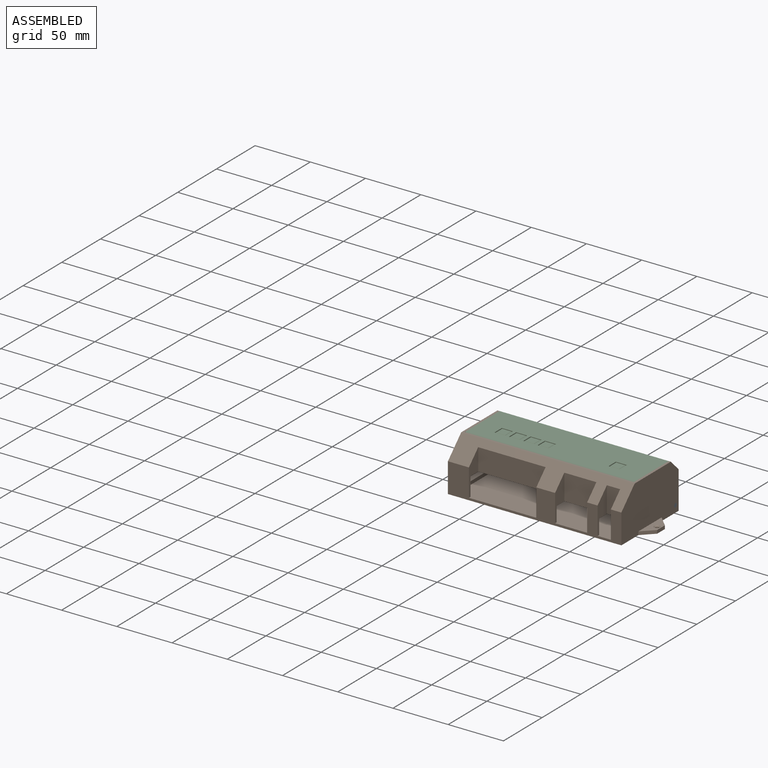
[diagram: assembled view]
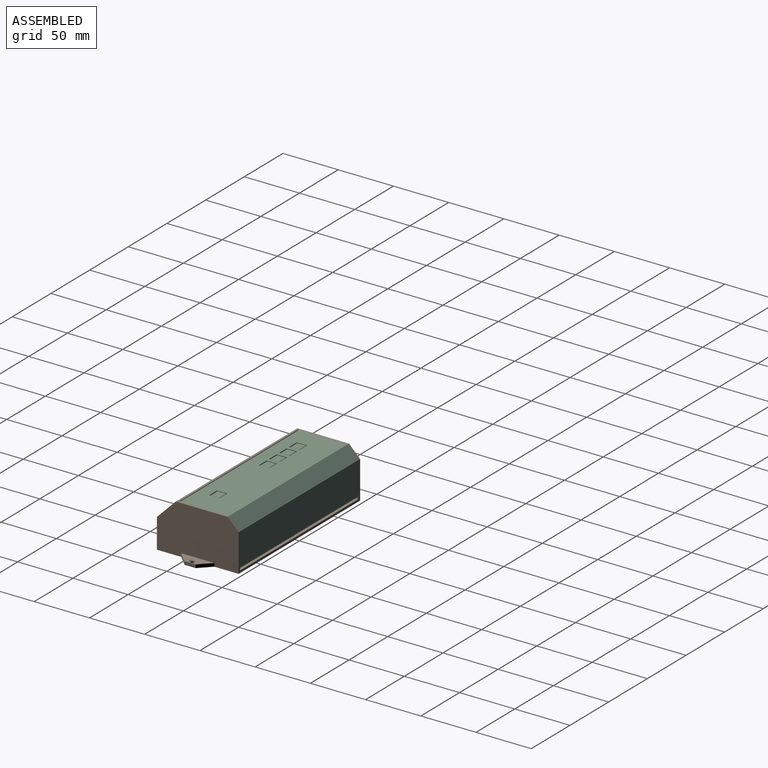
[diagram: assembled view, second angle]
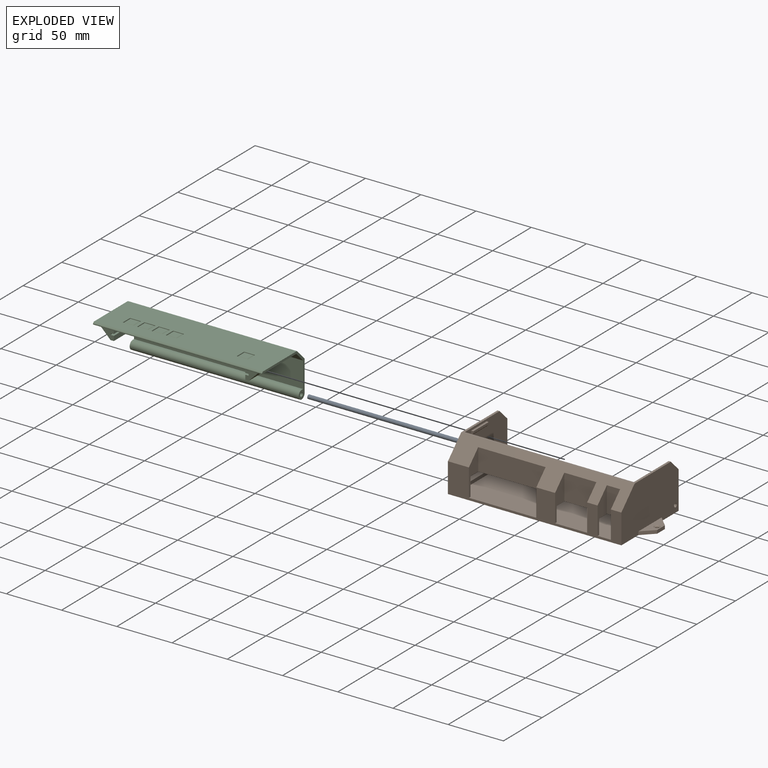
[diagram: exploded view]
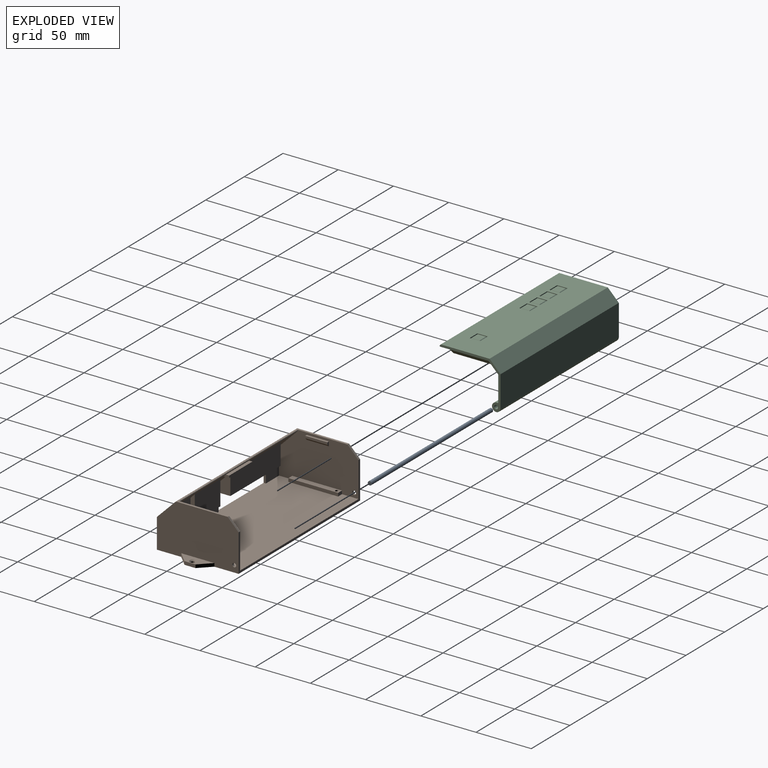
[diagram: exploded view, second angle]
ASSEMBLY  parts=3 mates=2
PART A: 3 faces, bbox 157x3.5x3.5 mm
  f0: cylinder r=1.75mm len=157mm, axis (1,0,0), area 1726.3mm2, adj f1,f2
  f1: plane 3.5x3.5mm, normal (-1,0,0), area 9.6mm2, adj f0
  f2: plane 3.5x3.5mm, normal (1,0,0), area 9.6mm2, adj f0
PART B: 81 faces, bbox 177x74x44 mm
  f0: plane 153x74mm, normal (0,0,1), area 10770mm2, adj f1,f9,f10,f11,f12,f13,f17,f18
  f1: plane 72x42mm, normal (1,0,0), area 2587.8mm2, adj f0,f8,f13,f37,f40,f42,f44,f57
  f2: plane 5x2mm, normal (1,0,0), area 8mm2, adj f4,f5,f6,f37
  f3: plane 5x2mm, normal (-1,0,0), area 8mm2, adj f4,f5,f6,f37
  f4: plane 30x5mm, normal (0,0,-1), area 150mm2, adj f2,f3,f6,f37
  f5: plane 30x3mm, normal (0,0,1), area 90mm2, adj f2,f3,f6,f37
  f6: plane 30x2mm, normal (0,1,0), area 60mm2, adj f2,f3,f4,f5
  f7: plane 74x44mm, normal (-1,0,0), area 2958.9mm2, adj f8,f12,f16,f26,f40,f42,f44,f51
  f8: plane 157x46.83mm, normal (0,0,1), area 467.1mm2, adj f1,f7,f15,f26,f27,f43,f44,f57
  f9: plane 24x9.5mm, normal (0,1,0), area 186mm2, adj f0,f17,f22,f28,f33,f37,f38,f39
  f10: plane 24x7.5mm, normal (0,1,0), area 159mm2, adj f0,f18,f27,f29,f37,f39
  f11: plane 24x17mm, normal (0,1,0), area 373mm2, adj f0,f14,f21,f23,f32,f34,f37,f38
  f12: plane 157x26.83mm, normal (0,-1,0), area 1679.6mm2, adj f0,f7,f15,f16,f17,f18,f21,f22
  f13: plane 24x17mm, normal (0,1,0), area 394mm2, adj f0,f1,f14,f25,f36,f37
  f14: plane 65x12mm, normal (0,0,-1), area 170mm2, adj f11,f13,f23,f24,f25,f34,f35,f36
  f15: plane 74x44mm, normal (1,0,0), area 2958.9mm2, adj f8,f12,f16,f26,f40,f41,f43,f45
  f16: plane 177x74mm, normal (0,0,-1), area 11998.8mm2, adj f7,f12,f15,f40,f46,f47,f48,f49
  f17: plane 36.83x12mm, normal (1,0,0), area 234.9mm2, adj f0,f9,f12,f19,f26,f39
  f18: plane 36.83x12mm, normal (-1,0,0), area 234.9mm2, adj f0,f10,f12,f19,f26,f39
  f19: plane 23.33x12mm, normal (0,-1,0), area 279.9mm2, adj f17,f18,f26,f39
  f20: plane 29x23.33mm, normal (0,-1,0), area 676.5mm2, adj f21,f22,f26,f38
  f21: plane 36.83x12mm, normal (1,0,0), area 234.9mm2, adj f0,f11,f12,f20,f26,f38
  f22: plane 36.83x12mm, normal (-1,0,0), area 234.9mm2, adj f0,f9,f12,f20,f26,f38
  f23: plane 36.83x12mm, normal (-1,0,0), area 199.9mm2, adj f0,f11,f12,f14,f24,f26
  f24: plane 61x19.83mm, normal (0,-1,0), area 1209.5mm2, adj f14,f23,f25,f26
  f25: plane 36.83x12mm, normal (1,0,0), area 199.9mm2, adj f0,f12,f13,f14,f24,f26
  f26: plane 157x17.17mm, normal (0,-0.71,0.71), area 2081.6mm2, adj f7,f8,f12,f15,f17,f18,f19,f20
  f27: plane 72x42mm, normal (-1,0,0), area 2587.8mm2, adj f0,f8,f10,f37,f40,f41,f43,f57
  f28: plane 22.5x12mm, normal (-1,0,0), area 198mm2, adj f9,f30,f37,f39
  f29: plane 22.5x12mm, normal (1,0,0), area 198mm2, adj f10,f30,f37,f39
  f30: plane 22.5x16mm, normal (0,1,0), area 360mm2, adj f28,f29,f37,f39
  f31: plane 33x22.5mm, normal (0,1,0), area 742.5mm2, adj f32,f33,f37,f38
  f32: plane 22.5x12mm, normal (-1,0,0), area 198mm2, adj f11,f31,f37,f38
  f33: plane 22.5x12mm, normal (1,0,0), area 198mm2, adj f9,f31,f37,f38
  f34: plane 19x12mm, normal (1,0,0), area 156mm2, adj f11,f14,f35,f37
  f35: plane 65x19mm, normal (0,1,0), area 1235mm2, adj f14,f34,f36,f37
  f36: plane 19x12mm, normal (-1,0,0), area 156mm2, adj f13,f14,f35,f37
  f37: plane 153x17.06mm, normal (0,0.71,-0.71), area 1671.1mm2, adj f1,f2,f3,f4,f5,f9,f10,f11
  f38: plane 33x12mm, normal (0,0,-1), area 106mm2, adj f9,f11,f20,f21,f22,f31,f32,f33
  f39: plane 16x12mm, normal (0,0,-1), area 72mm2, adj f9,f10,f17,f18,f19,f28,f29,f30
  f40: plane 157x34mm, normal (0,1,0), area 442mm2, adj f0,f1,f7,f15,f16,f27,f43,f44
  f41: cylinder r=1.75mm len=3.5mm, axis (1,0,0), area 22mm2, adj f15,f27
  f42: cylinder r=1.75mm len=3.5mm, axis (1,0,0), area 22mm2, adj f1,f7
  f43: plane 10x10mm, normal (0,0.71,0.71), area 28.3mm2, adj f8,f15,f27,f40
  f44: plane 10x10mm, normal (0,0.71,0.71), area 28.3mm2, adj f1,f7,f8,f40
  f45: plane 30x10mm, normal (0,0,1), area 176.2mm2, adj f15,f46,f47,f48,f50
  f46: plane 10x3mm, normal (1,0,0), area 30mm2, adj f16,f45,f47,f48
  f47: plane 10x10mm, normal (0.71,0.71,0), area 42.4mm2, adj f15,f16,f45,f46
  f48: plane 10x10mm, normal (0.71,-0.71,0), area 42.4mm2, adj f15,f16,f45,f46
  f49: cylinder r=1.75mm len=3.5mm, axis (0,0,1), area 22mm2, adj f16,f50
  f50: cone r=1.75mm half-angle=45deg, axis (0,0,1), area 20mm2, adj f45,f49
  f51: plane 30x10mm, normal (0,0,1), area 176.2mm2, adj f7,f52,f53,f54,f56
  f52: plane 10x3mm, normal (-1,0,0), area 30mm2, adj f16,f51,f53,f54
  f53: plane 10x10mm, normal (-0.71,-0.71,0), area 42.4mm2, adj f7,f16,f51,f52
  f54: plane 10x10mm, normal (-0.71,0.71,0), area 42.4mm2, adj f7,f16,f51,f52
  f55: cylinder r=1.75mm len=3.5mm, axis (0,0,1), area 22mm2, adj f16,f56
  f56: cone r=1.75mm half-angle=45deg, axis (0,0,1), area 20mm2, adj f51,f55
  f57: plane 153x0.4mm, normal (0,0.92,0.38), area 66mm2, adj f1,f8,f27,f58
  f58: cylinder r=0.5mm len=153mm, axis (-1,0,0), area 90.1mm2, adj f1,f27,f37,f57
  f59: plane 20x2mm, normal (0,0,1), area 40mm2, adj f1,f60,f61,f62
  f60: plane 4x2mm, normal (0,-1,0), area 6mm2, adj f1,f59,f62,f67
  f61: plane 4x2mm, normal (0,1,0), area 6mm2, adj f1,f59,f62,f67
  f62: plane 20x2mm, normal (1,0,0), area 40mm2, adj f59,f60,f61,f67
  f63: plane 20x2mm, normal (0,0,1), area 40mm2, adj f27,f64,f65,f66
  f64: plane 4x2mm, normal (0,1,0), area 6mm2, adj f27,f63,f66,f68
  f65: plane 4x2mm, normal (0,-1,0), area 6mm2, adj f27,f63,f66,f68
  f66: plane 20x2mm, normal (-1,0,0), area 40mm2, adj f63,f64,f65,f68
  f67: plane 20x2mm, normal (0.71,0,-0.71), area 56.6mm2, adj f1,f60,f61,f62
  f68: plane 20x2mm, normal (-0.71,0,-0.71), area 56.6mm2, adj f27,f64,f65,f66
  f69: plane 5x3mm, normal (0,1,0), area 15mm2, adj f0,f27,f70,f72
  f70: plane 45x3mm, normal (-1,0,0), area 135mm2, adj f0,f69,f71,f72
  f71: plane 5x3mm, normal (0,-1,0), area 15mm2, adj f0,f27,f70,f72
  f72: plane 45x5mm, normal (0,0,1), area 220.1mm2, adj f27,f69,f70,f71,f79
  f73: plane 5x3mm, normal (0,1,0), area 15mm2, adj f0,f1,f75,f76
  f74: plane 5x3mm, normal (0,-1,0), area 15mm2, adj f0,f1,f75,f76
  f75: plane 45x3mm, normal (1,0,0), area 135mm2, adj f0,f73,f74,f76
  f76: plane 45x5mm, normal (0,0,1), area 220.1mm2, adj f1,f73,f74,f75,f77
  f77: cylinder r=1.25mm len=4mm, axis (0,0,1), area 31.4mm2, adj f76,f78
  f78: plane 2.5x2.5mm, normal (0,0,1), area 4.9mm2, adj f77
  f79: cylinder r=1.25mm len=4mm, axis (0,0,1), area 31.4mm2, adj f72,f80
  f80: plane 2.5x2.5mm, normal (0,0,1), area 4.9mm2, adj f79
PART C: 104 faces, bbox 153x55.1x42 mm
  f0: plane 8x7.5mm, normal (0,0,1), area 60mm2, adj f100,f101,f102,f103
  f1: plane 8x7.5mm, normal (0,0,1), area 60mm2, adj f96,f97,f98,f99
  f2: plane 8x7.5mm, normal (0,0,1), area 60mm2, adj f92,f93,f94,f95
  f3: plane 8x7.5mm, normal (0,0,1), area 60mm2, adj f88,f89,f90,f91
  f4: plane 8x7.5mm, normal (0,0,1), area 60mm2, adj f84,f85,f86,f87
  f5: plane 153x44.17mm, normal (0,0,-1), area 4704.3mm2, adj f8,f13,f17,f18,f23,f25,f26,f28
  f6: plane 153x44mm, normal (0,0,1), area 6257mm2, adj f14,f15,f17,f18,f40,f41,f42,f43
  f7: plane 34x4.25mm, normal (1,0,0), area 144.5mm2, adj f10,f26,f30,f31
  f8: plane 13x10mm, normal (0,-1,0), area 75.5mm2, adj f5,f9,f28,f30,f31,f32,f33,f36
  f9: plane 34x4.25mm, normal (-1,0,0), area 144.5mm2, adj f8,f10,f30,f31
  f10: plane 119x4.25mm, normal (0,-1,0), area 505.7mm2, adj f7,f9,f30,f31
  f11: plane 153x1.75mm, normal (0,0,1), area 267.8mm2, adj f12,f17,f18,f20
  f12: plane 153x23.32mm, normal (0,-1,0), area 3568.2mm2, adj f11,f13,f17,f18
  f13: plane 153x8.83mm, normal (0,-0.71,-0.71), area 1910.2mm2, adj f5,f12,f17,f18,f27
  f14: plane 153x0.82mm, normal (0,-0.71,0.71), area 177.5mm2, adj f6,f17,f18,f24
  f15: plane 153x10mm, normal (0,0.71,0.71), area 2163.7mm2, adj f6,f16,f17,f18
  f16: plane 153x28mm, normal (0,1,0), area 4284mm2, adj f15,f17,f18,f22
  f17: plane 55.11x42mm, normal (-1,0,0), area 203.8mm2, adj f5,f6,f11,f12,f13,f14,f15,f16
  f18: plane 55.11x42mm, normal (1,0,0), area 203.8mm2, adj f5,f6,f11,f12,f13,f14,f15,f16
  f19: cylinder r=1.75mm len=153mm, axis (-1,0,0), area 1682.3mm2, adj f17,f18
  f20: cylinder r=4mm len=153mm, axis (1,0,0), area 949.9mm2, adj f11,f17,f18,f21
  f21: cylinder r=4mm len=153mm, axis (1,0,0), area 930.7mm2, adj f17,f18,f20,f22
  f22: cylinder r=4mm len=153mm, axis (-1,0,0), area 942.2mm2, adj f16,f17,f18,f21
  f23: plane 153x0.09mm, normal (0,-0.92,-0.38), area 14.9mm2, adj f5,f17,f18,f24
  f24: cylinder r=1mm len=153mm, axis (-1,0,0), area 180.2mm2, adj f14,f17,f18,f23
  f25: plane 34x4.25mm, normal (1,0,0), area 144.5mm2, adj f5,f26,f29,f33
  f26: plane 13x10mm, normal (0,-1,0), area 75.5mm2, adj f5,f7,f25,f30,f31,f33,f34,f38
  f27: plane 145x5mm, normal (0,1,0), area 700mm2, adj f13,f36,f37,f38
  f28: plane 34x4.25mm, normal (-1,0,0), area 144.5mm2, adj f5,f8,f29,f33
  f29: plane 119x4.25mm, normal (0,-1,0), area 505.8mm2, adj f5,f25,f28,f33
  f30: plane 125x36.59mm, normal (0,0,-1), area 527.2mm2, adj f7,f8,f9,f10,f26,f36,f37,f38
  f31: plane 125x40mm, normal (0,0,1), area 954mm2, adj f7,f8,f9,f10,f26,f32,f34,f35
  f32: plane 40x1.5mm, normal (-1,0,0), area 60mm2, adj f8,f31,f33,f35
  f33: plane 125x40mm, normal (0,0,-1), area 954mm2, adj f8,f25,f26,f28,f29,f32,f34,f35
  f34: plane 40x1.5mm, normal (1,0,0), area 60mm2, adj f26,f31,f33,f35
  f35: plane 125x1.5mm, normal (0,-1,0), area 187.5mm2, adj f31,f32,f33,f34
  f36: plane 41.59x10mm, normal (0.71,0,-0.71), area 570.4mm2, adj f5,f8,f27,f30,f37
  f37: plane 135x5mm, normal (0,0.71,-0.71), area 919.2mm2, adj f27,f30,f36,f38
  f38: plane 41.59x10mm, normal (-0.71,0,-0.71), area 570.4mm2, adj f5,f26,f27,f30,f37
  f39: plane 9x1.5mm, normal (-1,0,0), area 13.3mm2, adj f5,f40,f45,f82,f83,f87
  f40: plane 10x2mm, normal (0,-1,0), area 11mm2, adj f5,f6,f39,f41,f43,f44,f83
  f41: plane 9.5x2mm, normal (1,0,0), area 19mm2, adj f5,f6,f40,f42
  f42: plane 10x2mm, normal (0,1,0), area 20mm2, adj f5,f6,f41,f43
  f43: plane 9.5x2mm, normal (-1,0,0), area 19mm2, adj f5,f6,f40,f42
  f44: plane 9x1.5mm, normal (1,0,0), area 13.3mm2, adj f5,f40,f45,f82,f83,f84
  f45: plane 9x1.5mm, normal (0,-1,0), area 13.5mm2, adj f5,f39,f44,f86
  f46: plane 9x1.5mm, normal (-1,0,0), area 13.3mm2, adj f5,f47,f52,f80,f81,f91
  f47: plane 10x2mm, normal (0,-1,0), area 11mm2, adj f5,f6,f46,f48,f50,f51,f81
  f48: plane 9.5x2mm, normal (1,0,0), area 19mm2, adj f5,f6,f47,f49
  f49: plane 10x2mm, normal (0,1,0), area 20mm2, adj f5,f6,f48,f50
  f50: plane 9.5x2mm, normal (-1,0,0), area 19mm2, adj f5,f6,f47,f49
  f51: plane 9x1.5mm, normal (1,0,0), area 13.3mm2, adj f5,f47,f52,f80,f81,f88
  f52: plane 9x1.5mm, normal (0,-1,0), area 13.5mm2, adj f5,f46,f51,f90
  f53: plane 9x1.5mm, normal (-1,0,0), area 13.3mm2, adj f5,f54,f59,f78,f79,f95
  f54: plane 10x2mm, normal (0,-1,0), area 11mm2, adj f5,f6,f53,f55,f57,f58,f79
  f55: plane 9.5x2mm, normal (1,0,0), area 19mm2, adj f5,f6,f54,f56
  f56: plane 10x2mm, normal (0,1,0), area 20mm2, adj f5,f6,f55,f57
  f57: plane 9.5x2mm, normal (-1,0,0), area 19mm2, adj f5,f6,f54,f56
  f58: plane 9x1.5mm, normal (1,0,0), area 13.3mm2, adj f5,f54,f59,f78,f79,f92
  f59: plane 9x1.5mm, normal (0,-1,0), area 13.5mm2, adj f5,f53,f58,f94
  f60: plane 9x1.5mm, normal (-1,0,0), area 13.3mm2, adj f5,f61,f66,f76,f77,f99
  f61: plane 10x2mm, normal (0,-1,0), area 11mm2, adj f5,f6,f60,f62,f64,f65,f77
  f62: plane 9.5x2mm, normal (1,0,0), area 19mm2, adj f5,f6,f61,f63
  f63: plane 10x2mm, normal (0,1,0), area 20mm2, adj f5,f6,f62,f64
  f64: plane 9.5x2mm, normal (-1,0,0), area 19mm2, adj f5,f6,f61,f63
  f65: plane 9x1.5mm, normal (1,0,0), area 13.3mm2, adj f5,f61,f66,f76,f77,f96
  f66: plane 9x1.5mm, normal (0,-1,0), area 13.5mm2, adj f5,f60,f65,f98
  f67: plane 9x1.5mm, normal (-1,0,0), area 13.3mm2, adj f5,f68,f73,f74,f75,f100
  f68: plane 10x2mm, normal (0,-1,0), area 11mm2, adj f5,f6,f67,f69,f71,f72,f75
  f69: plane 9.5x2mm, normal (1,0,0), area 19mm2, adj f5,f6,f68,f70
  f70: plane 10x2mm, normal (0,1,0), area 20mm2, adj f5,f6,f69,f71
  f71: plane 9.5x2mm, normal (-1,0,0), area 19mm2, adj f5,f6,f68,f70
  f72: plane 9x1.5mm, normal (1,0,0), area 13.3mm2, adj f5,f68,f73,f74,f75,f103
  f73: plane 9x1.5mm, normal (0,-1,0), area 13.5mm2, adj f5,f67,f72,f102
  f74: plane 9x0.5mm, normal (0,1,0), area 4.5mm2, adj f67,f72,f75,f101
  f75: plane 9x0.5mm, normal (0,0,1), area 4.5mm2, adj f67,f68,f72,f74
  f76: plane 9x0.5mm, normal (0,1,0), area 4.5mm2, adj f60,f65,f77,f97
  f77: plane 9x0.5mm, normal (0,0,1), area 4.5mm2, adj f60,f61,f65,f76
  f78: plane 9x0.5mm, normal (0,1,0), area 4.5mm2, adj f53,f58,f79,f93
  f79: plane 9x0.5mm, normal (0,0,1), area 4.5mm2, adj f53,f54,f58,f78
  f80: plane 9x0.5mm, normal (0,1,0), area 4.5mm2, adj f46,f51,f81,f89
  f81: plane 9x0.5mm, normal (0,0,1), area 4.5mm2, adj f46,f47,f51,f80
  f82: plane 9x0.5mm, normal (0,1,0), area 4.5mm2, adj f39,f44,f83,f85
  f83: plane 9x0.5mm, normal (0,0,1), area 4.5mm2, adj f39,f40,f44,f82
  f84: plane 8.5x0.5mm, normal (0.71,0,0.71), area 5.7mm2, adj f4,f44,f85,f86
  f85: plane 9x0.5mm, normal (0,0.71,0.71), area 6mm2, adj f4,f82,f84,f87
  f86: plane 9x0.5mm, normal (0,-0.71,0.71), area 6mm2, adj f4,f45,f84,f87
  f87: plane 8.5x0.5mm, normal (-0.71,0,0.71), area 5.7mm2, adj f4,f39,f85,f86
  f88: plane 8.5x0.5mm, normal (0.71,0,0.71), area 5.7mm2, adj f3,f51,f89,f90
  f89: plane 9x0.5mm, normal (0,0.71,0.71), area 6mm2, adj f3,f80,f88,f91
  f90: plane 9x0.5mm, normal (0,-0.71,0.71), area 6mm2, adj f3,f52,f88,f91
  f91: plane 8.5x0.5mm, normal (-0.71,0,0.71), area 5.7mm2, adj f3,f46,f89,f90
  f92: plane 8.5x0.5mm, normal (0.71,0,0.71), area 5.7mm2, adj f2,f58,f93,f94
  f93: plane 9x0.5mm, normal (0,0.71,0.71), area 6mm2, adj f2,f78,f92,f95
  f94: plane 9x0.5mm, normal (0,-0.71,0.71), area 6mm2, adj f2,f59,f92,f95
  f95: plane 8.5x0.5mm, normal (-0.71,0,0.71), area 5.7mm2, adj f2,f53,f93,f94
  f96: plane 8.5x0.5mm, normal (0.71,0,0.71), area 5.7mm2, adj f1,f65,f97,f98
  f97: plane 9x0.5mm, normal (0,0.71,0.71), area 6mm2, adj f1,f76,f96,f99
  f98: plane 9x0.5mm, normal (0,-0.71,0.71), area 6mm2, adj f1,f66,f96,f99
  f99: plane 8.5x0.5mm, normal (-0.71,0,0.71), area 5.7mm2, adj f1,f60,f97,f98
  f100: plane 8.5x0.5mm, normal (-0.71,0,0.71), area 5.7mm2, adj f0,f67,f101,f102
  f101: plane 9x0.5mm, normal (0,0.71,0.71), area 6mm2, adj f0,f74,f100,f103
  f102: plane 9x0.5mm, normal (0,-0.71,0.71), area 6mm2, adj f0,f73,f100,f103
  f103: plane 8.5x0.5mm, normal (0.71,0,0.71), area 5.7mm2, adj f0,f72,f101,f102
PLACE A t=(-38.85,-39.5,-23.4)mm
PLACE B t=(-38.85,-39.5,-23.4)mm
PLACE C rot(axis=(-1,0,0),0deg) t=(-38.85,-39.5,-23.4)mm
MATE fastened A.f0 <-> B.f41  axis (1,0,0) through (78.5,-4,6.1)mm
MATE revolute B.f41 <-> C.f19  axis (-1,0,0) through (76.5,-4,6.1)mm
